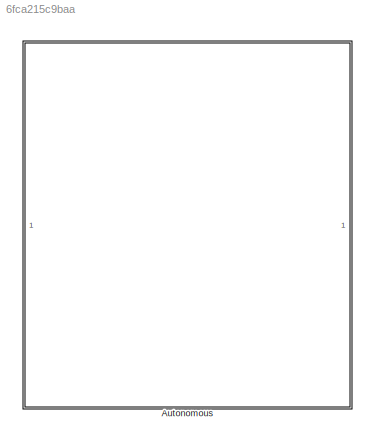
MODEL slx_6fca215c9baa
KIND library
CONFIG AbsTol = auto
CONFIG EnableMultiTasking = off
CONFIG FixedStep = auto
CONFIG MaxStep = auto
CONFIG MinStep = auto
CONFIG RelTol = 1e-3
CONFIG SampleTimeConstraint = Unconstrained
CONFIG SolverName = VariableStepAuto
CONFIG StartTime = 0.0
CONFIG StopTime = 10.0
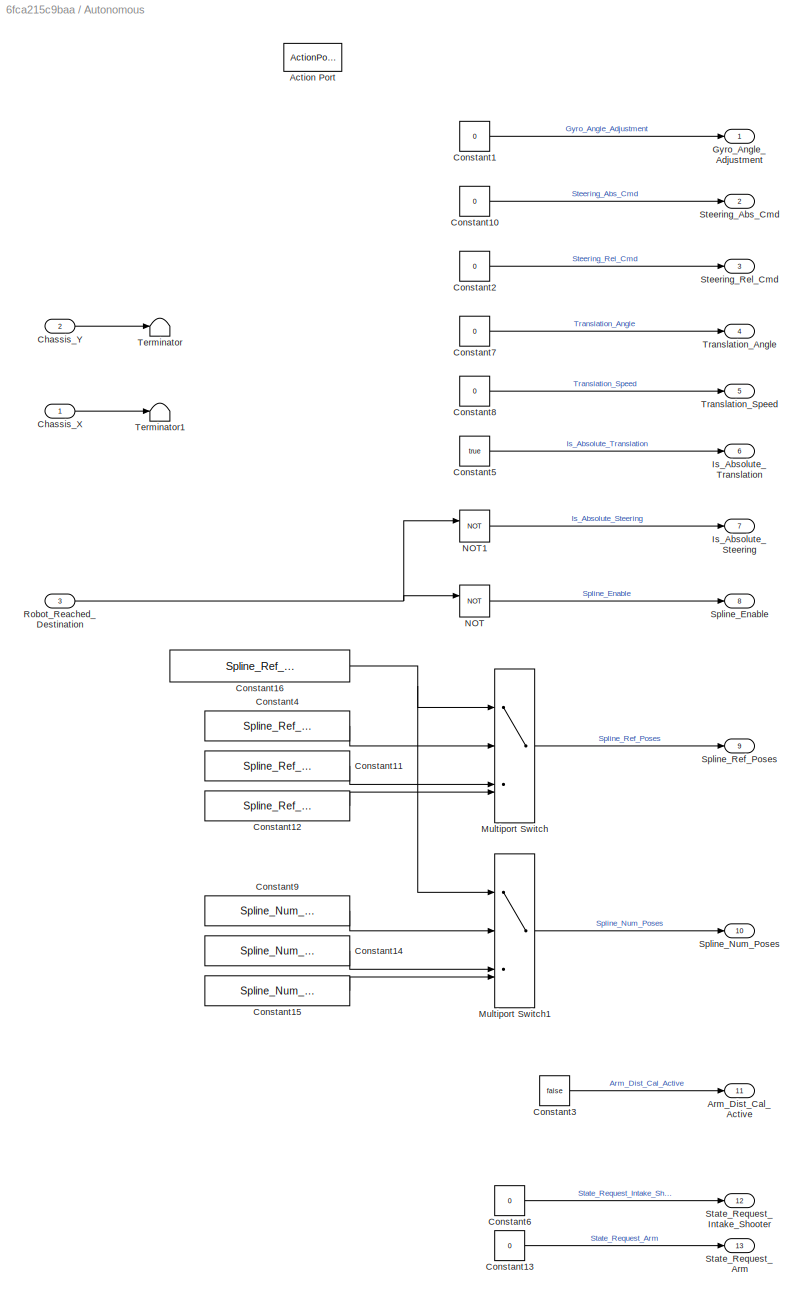
BLOCK [SubSystem] Autonomous
  TreatAsAtomicUnit = on
BLOCK [ActionPort] Autonomous/Action Port
  InitializeStates = reset
BLOCK [Outport] Autonomous/Arm_Dist_Cal_Active
  Port = 11
BLOCK [Inport] Autonomous/Chassis_X
BLOCK [Inport] Autonomous/Chassis_Y
  Port = 2
BLOCK [Constant] Autonomous/Constant1
  Value = 0
BLOCK [Constant] Autonomous/Constant10
  Value = 0
BLOCK [Constant] Autonomous/Constant11
  Value = Spline_Ref_Poses_auto2
BLOCK [Constant] Autonomous/Constant12
  Value = Spline_Ref_Poses_auto3
BLOCK [Constant] Autonomous/Constant13
  Value = 0
BLOCK [Constant] Autonomous/Constant14
  OutDataTypeStr = double
  Value = Spline_Num_Poses_auto2
BLOCK [Constant] Autonomous/Constant15
  OutDataTypeStr = double
  Value = Spline_Num_Poses_auto3
BLOCK [Constant] Autonomous/Constant16
  Value = Spline_Ref_Poses_switch_num
BLOCK [Constant] Autonomous/Constant2
  Value = 0
BLOCK [Constant] Autonomous/Constant3
  OutDataTypeStr = boolean
  Value = false
BLOCK [Constant] Autonomous/Constant4
  Value = Spline_Ref_Poses_auto1
BLOCK [Constant] Autonomous/Constant5
  Value = true
BLOCK [Constant] Autonomous/Constant6
  Value = 0
BLOCK [Constant] Autonomous/Constant7
  Value = 0
BLOCK [Constant] Autonomous/Constant8
  Value = 0
BLOCK [Constant] Autonomous/Constant9
  OutDataTypeStr = double
  Value = Spline_Num_Poses_auto1
BLOCK [Outport] Autonomous/Gyro_Angle_Adjustment
BLOCK [Outport] Autonomous/Is_Absolute_Steering
  Port = 7
BLOCK [Outport] Autonomous/Is_Absolute_Translation
  Port = 6
BLOCK [MultiPortSwitch] Autonomous/Multiport Switch
  InputSameDT = off
  SaturateOnIntegerOverflow = off
BLOCK [MultiPortSwitch] Autonomous/Multiport Switch1
  InputSameDT = off
  SaturateOnIntegerOverflow = off
BLOCK [Logic] Autonomous/NOT
  AllPortsSameDT = off
  Operator = NOT
  OutDataTypeStr = boolean
BLOCK [Logic] Autonomous/NOT1
  AllPortsSameDT = off
  Operator = NOT
  OutDataTypeStr = boolean
BLOCK [Inport] Autonomous/Robot_Reached_Destination
  Port = 3
BLOCK [Outport] Autonomous/Spline_Enable
  Port = 8
BLOCK [Outport] Autonomous/Spline_Num_Poses
  Port = 10
BLOCK [Outport] Autonomous/Spline_Ref_Poses
  Port = 9
BLOCK [Outport] Autonomous/State_Request_Arm
  Port = 13
BLOCK [Outport] Autonomous/State_Request_Intake_Shooter
  Port = 12
BLOCK [Outport] Autonomous/Steering_Abs_Cmd
  Port = 2
BLOCK [Outport] Autonomous/Steering_Rel_Cmd
  Port = 3
BLOCK [Terminator] Autonomous/Terminator
BLOCK [Terminator] Autonomous/Terminator1
BLOCK [Outport] Autonomous/Translation_Angle
  Port = 4
BLOCK [Outport] Autonomous/Translation_Speed
  Port = 5
LINE Autonomous/Chassis_X:1 -> Autonomous/Terminator1:1
LINE Autonomous/Chassis_Y:1 -> Autonomous/Terminator:1
LINE Autonomous/Constant10:1 -> Autonomous/Steering_Abs_Cmd:1
LINE Autonomous/Constant11:1 -> Autonomous/Multiport Switch:3
LINE Autonomous/Constant12:1 -> Autonomous/Multiport Switch:4
LINE Autonomous/Constant13:1 -> Autonomous/State_Request_Arm:1
LINE Autonomous/Constant14:1 -> Autonomous/Multiport Switch1:3
LINE Autonomous/Constant15:1 -> Autonomous/Multiport Switch1:4
NET Autonomous/Constant16:1 -> Autonomous/Multiport Switch1:1, Autonomous/Multiport Switch:1
LINE Autonomous/Constant1:1 -> Autonomous/Gyro_Angle_Adjustment:1
LINE Autonomous/Constant2:1 -> Autonomous/Steering_Rel_Cmd:1
LINE Autonomous/Constant3:1 -> Autonomous/Arm_Dist_Cal_Active:1
LINE Autonomous/Constant4:1 -> Autonomous/Multiport Switch:2
LINE Autonomous/Constant5:1 -> Autonomous/Is_Absolute_Translation:1
LINE Autonomous/Constant6:1 -> Autonomous/State_Request_Intake_Shooter:1
LINE Autonomous/Constant7:1 -> Autonomous/Translation_Angle:1
LINE Autonomous/Constant8:1 -> Autonomous/Translation_Speed:1
LINE Autonomous/Constant9:1 -> Autonomous/Multiport Switch1:2
LINE Autonomous/Multiport Switch1:1 -> Autonomous/Spline_Num_Poses:1
LINE Autonomous/Multiport Switch:1 -> Autonomous/Spline_Ref_Poses:1
LINE Autonomous/NOT1:1 -> Autonomous/Is_Absolute_Steering:1
LINE Autonomous/NOT:1 -> Autonomous/Spline_Enable:1
NET Autonomous/Robot_Reached_Destination:1 -> Autonomous/NOT1:1, Autonomous/NOT:1
note: NET lines group one-source signal fan-out (src -> all destinations, sorted); 1:1 wires keep LINE
